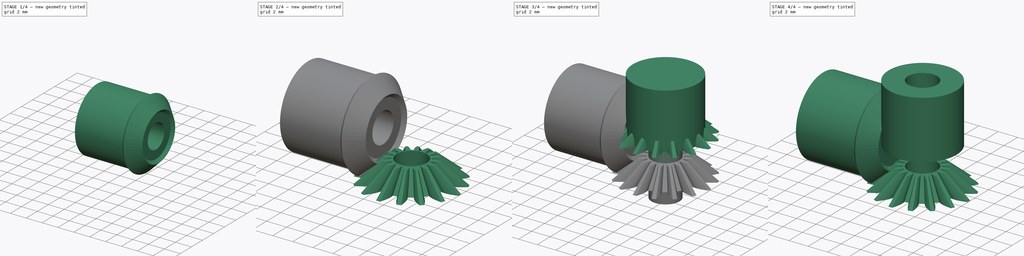
[diagram: build sequence overview — one tinted view per stage of 4, left to right]
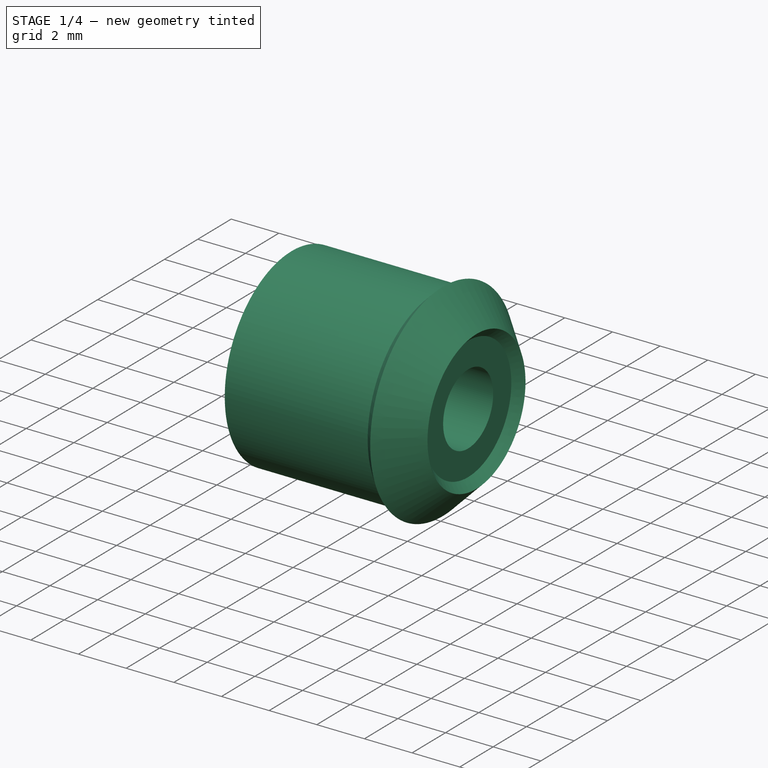
[diagram: stage 1 of 4 — iso view after this stage's code; geometry added in this stage tinted green]
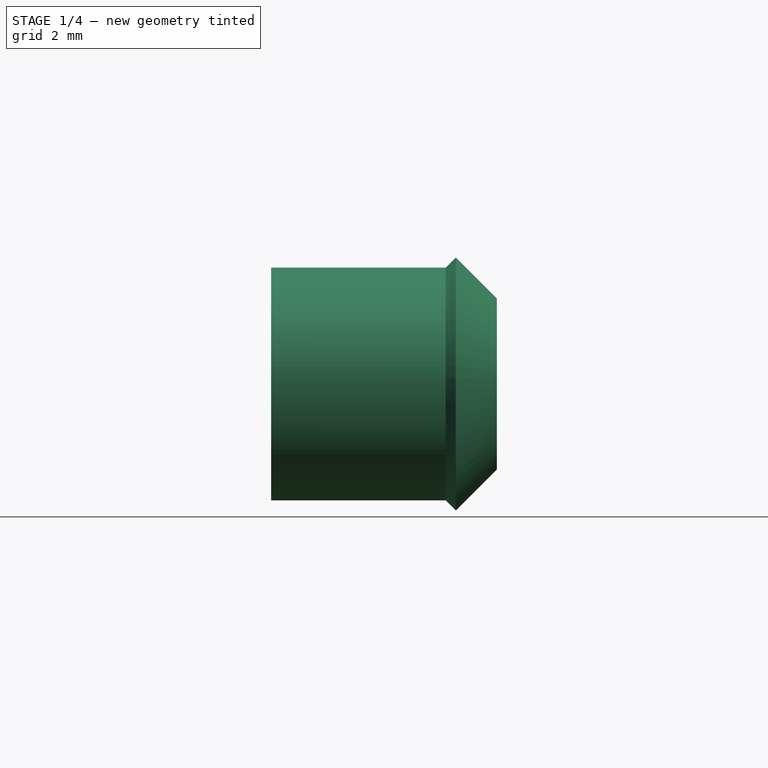
[diagram: stage 1 of 4 — front view after this stage's code; geometry added in this stage tinted green]
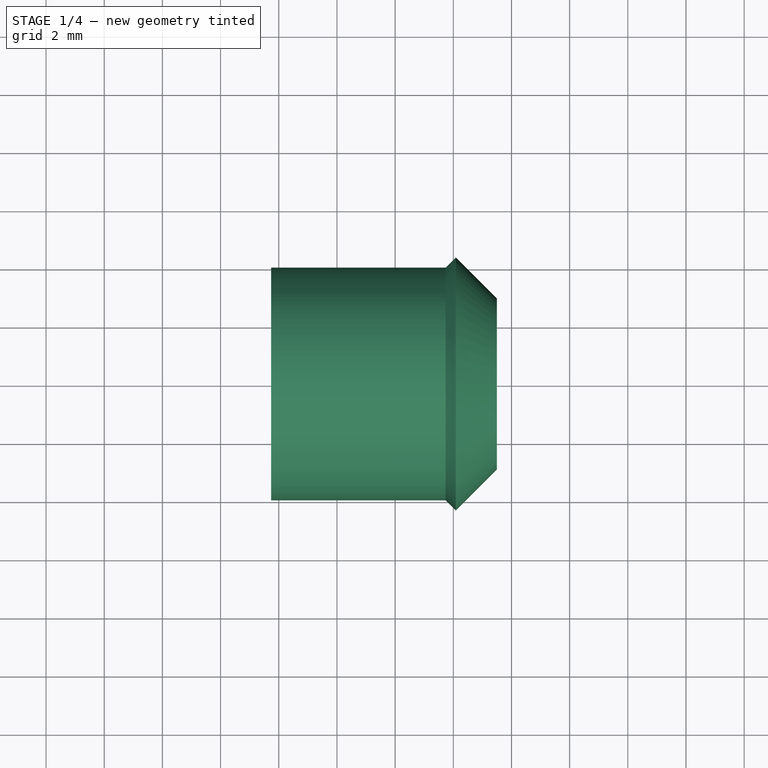
[diagram: stage 1 of 4 — top view after this stage's code; geometry added in this stage tinted green]
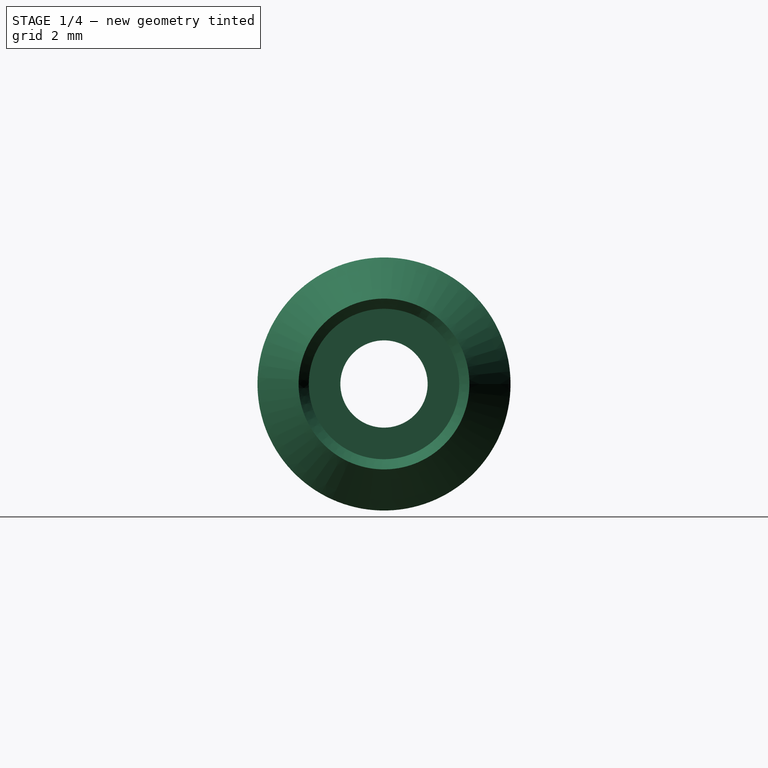
[diagram: stage 1 of 4 — right view after this stage's code; geometry added in this stage tinted green]
FCSTD DOCUMENT  (FreeCAD 0.19R)
Label: gears2
License: All rights reserved
LicenseURL: http://en.wikipedia.org/wiki/All_rights_reserved
objects: Sketcher::SketchObject×8, PartDesign::Body×6, PartDesign::Pad×4, Part::FeaturePython×2, PartDesign::ShapeBinder×2, Part::Cut×2, App::Part×2, PartDesign::Revolution×2
note: 32 computed .brp shape members not serialized (recipe doc carries the construction recipe); baked Part::Feature solids carry a one-line shape summary decoded from their .brp

FEATURE [App::Part] Part001  label="bevel_gear_x"
  Group = -> [Body003,BevelGear001,Body002,Cut001]
  Origin = -> Origin005
  Placement = pos=(0,0,0) rot=(0,1,0;1.5708rad)
FEATURE [Sketcher::SketchObject] Sketch006
  FullyConstrained = true
  MapMode = 5
  Support = -> [XY_Plane006]
  sketch-geometry (7):
    g0: LineSegment StartX=-10.2642 StartY=4 StartZ=0 EndX=-4.26421 EndY=4 EndZ=0
    g1: LineSegment StartX=-4.26421 StartY=4 StartZ=0 EndX=-3.91421 EndY=4.35 EndZ=0
    g2: LineSegment StartX=-3.91421 StartY=4.35 StartZ=0 EndX=-2.5 EndY=2.93579 EndZ=0
    g3: LineSegment StartX=-2.5 StartY=2.93579 StartZ=0 EndX=-2.85 EndY=2.58579 EndZ=0
    g4: LineSegment StartX=-2.85 StartY=2.58579 StartZ=0 EndX=-2.85 EndY=1.5 EndZ=0
    g5: LineSegment StartX=-2.85 StartY=1.5 StartZ=0 EndX=-10.2642 EndY=1.5 EndZ=0
    g6: LineSegment StartX=-10.2642 StartY=1.5 StartZ=0 EndX=-10.2642 EndY=4 EndZ=0
  constraints (21):
    c: Horizontal(g0)
    c: Coincident(g0,g1)
    c: Coincident(g1,g2)
    c: Coincident(g2,g3)
    c: Coincident(g3,g4)
    c: Vertical(g4)
    c: Coincident(g4,g5)
    c: Horizontal(g5)
    c: Coincident(g5,g6)
    c: Coincident(g6,g0)
    c: Vertical(g6)
    c: DistanceX(g0,g0) = 6  'Lm'
    c: Parallel(g3,g1)
    c: Distance(g2) = 2  'F'
    c: Angle(g1,g0) = 2.35619
    c: DistanceY(g-1,g4) = 1.5  'bore'
    c: DistanceY(g-1,g0) = 4  'rm'
    c: DistanceY(g-1,g1) = 4.35
    c: Perpendicular(g1,g2)
    c: DistanceX(g2,g-1) = 2.5
    c: Equal(g3,g1)
FEATURE [PartDesign::Revolution] Revolution
  Angle = 360
  Axis = (1,0,0)
  Base = (0,0,0)
  Profile = -> Sketch006
  ReferenceAxis = -> X_Axis006
FEATURE [PartDesign::Body] Body004  label="bevel_x"
  Group = -> [Sketch006,Revolution]
  Origin = -> Origin006
  Tip = -> Revolution
FEATURE [Sketcher::SketchObject] Sketch007
  FullyConstrained = true
  MapMode = 5
  Support = -> [XY_Plane007]
  sketch-geometry (7):
    g0: LineSegment StartX=-10.2642 StartY=4 StartZ=0 EndX=-4.26421 EndY=4 EndZ=0
    g1: LineSegment StartX=-4.26421 StartY=4 StartZ=0 EndX=-3.91421 EndY=4.35 EndZ=0
    g2: LineSegment StartX=-3.91421 StartY=4.35 StartZ=0 EndX=-2.5 EndY=2.93579 EndZ=0
    g3: LineSegment StartX=-2.5 StartY=2.93579 StartZ=0 EndX=-2.85 EndY=2.58579 EndZ=0
    g4: LineSegment StartX=-2.85 StartY=2.58579 StartZ=0 EndX=-2.85 EndY=1.5 EndZ=0
    g5: LineSegment StartX=-2.85 StartY=1.5 StartZ=0 EndX=-10.2642 EndY=1.5 EndZ=0
    g6: LineSegment StartX=-10.2642 StartY=1.5 StartZ=0 EndX=-10.2642 EndY=4 EndZ=0
  constraints (21):
    c: Horizontal(g0)
    c: Coincident(g0,g1)
    c: Coincident(g1,g2)
    c: Coincident(g2,g3)
    c: Coincident(g3,g4)
    c: Vertical(g4)
    c: Coincident(g4,g5)
    c: Horizontal(g5)
    c: Coincident(g5,g6)
    c: Coincident(g6,g0)
    c: Vertical(g6)
    c: DistanceX(g0,g0) = 6  'Lm'
    c: Parallel(g3,g1)
    c: Distance(g2) = 2  'F'
    c: Angle(g1,g0) = 2.35619
    c: DistanceY(g-1,g4) = 1.5  'bore'
    c: DistanceY(g-1,g0) = 4  'rm'
    c: DistanceY(g-1,g1) = 4.35
    c: Perpendicular(g1,g2)
    c: DistanceX(g2,g-1) = 2.5
    c: Equal(g3,g1)
FEATURE [PartDesign::Revolution] Revolution001
  Angle = 360
  Axis = (1,0,0)
  Base = (0,0,0)
  Profile = -> Sketch007
  ReferenceAxis = -> X_Axis007
FEATURE [PartDesign::Body] Body005  label="bevel_z"
  Group = -> [Sketch007,Revolution001]
  Origin = -> Origin007
  Placement = pos=(0,0,0) rot=(0,0,1;1.5708rad)
  Tip = -> Revolution001
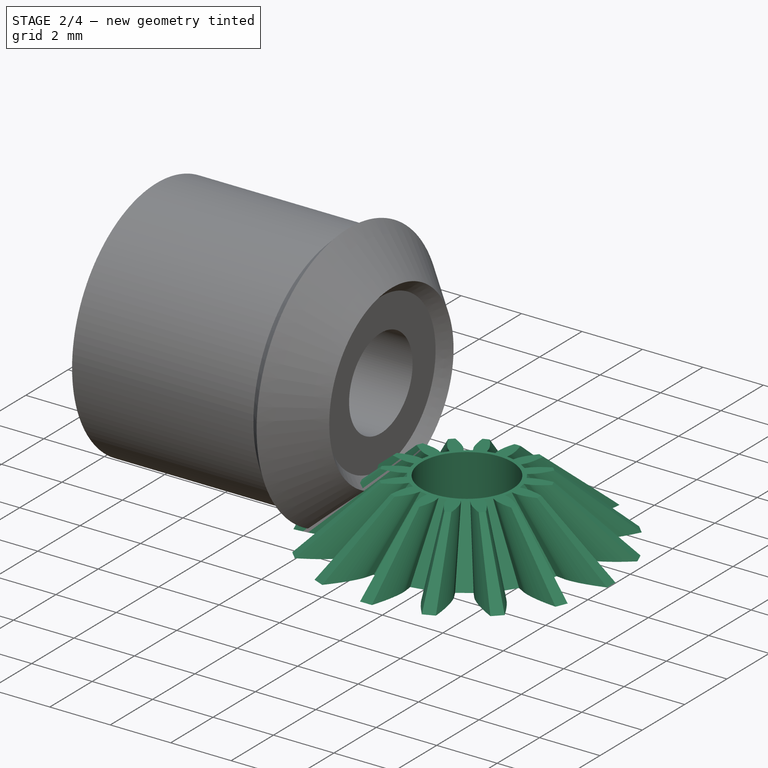
[diagram: stage 2 of 4 — iso view after this stage's code; geometry added in this stage tinted green]
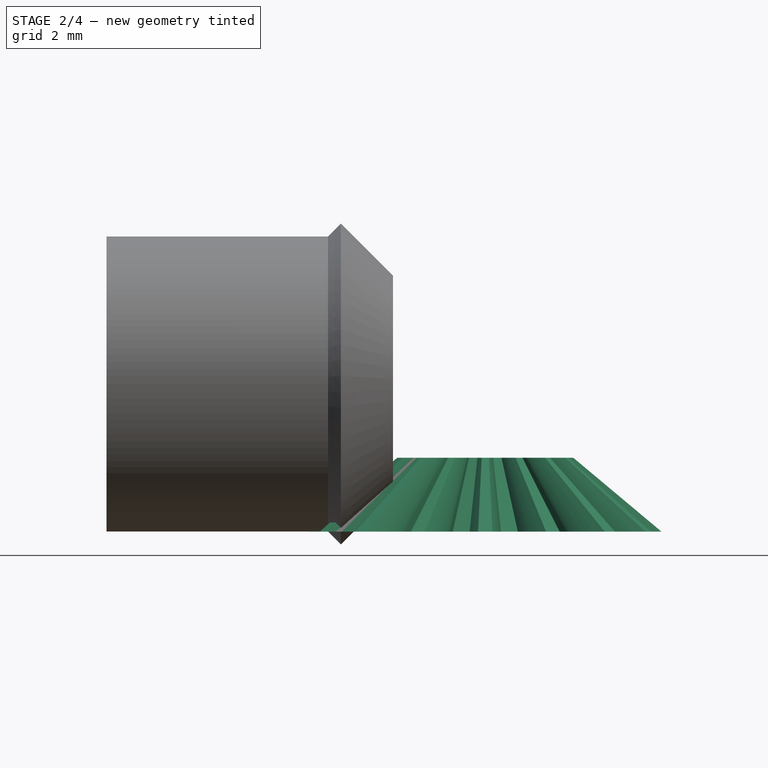
[diagram: stage 2 of 4 — front view after this stage's code; geometry added in this stage tinted green]
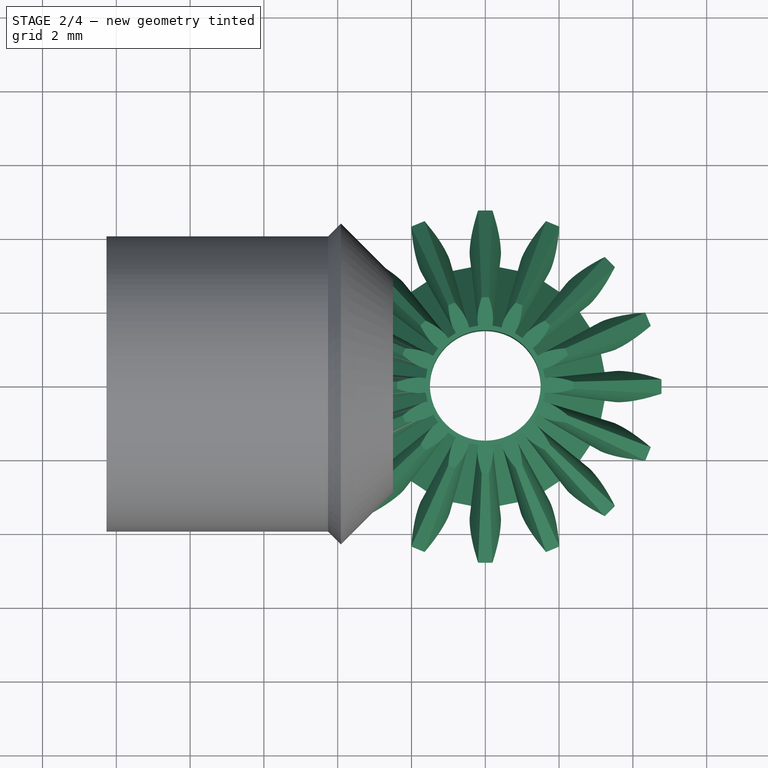
[diagram: stage 2 of 4 — top view after this stage's code; geometry added in this stage tinted green]
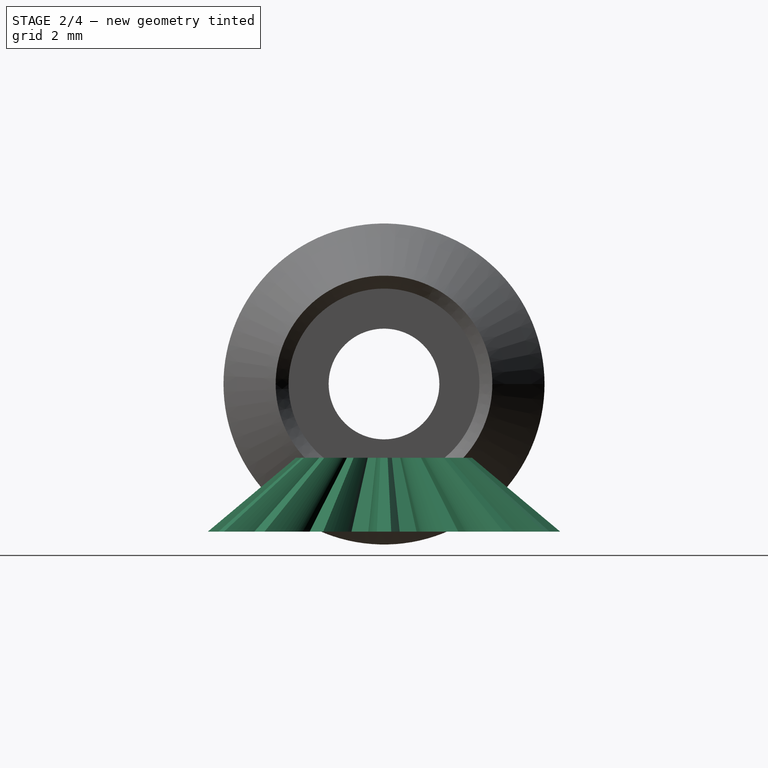
[diagram: stage 2 of 4 — right view after this stage's code; geometry added in this stage tinted green]
FEATURE [App::Part] Part  label="bevel_gear_z"
  Group = -> [Body,BevelGear,Body001,Cut]
  Origin = -> Origin002
  Placement = pos=(0,0,0) rot=(0,0,1;0.20944rad)
FEATURE [Sketcher::SketchObject] Sketch003
  FullyConstrained = true
  MapMode = 5
  Support = -> [XY_Plane005]
  sketch-geometry (1):
    g0: Circle CenterX=0 CenterY=0 CenterZ=0 NormalX=0 NormalY=0 NormalZ=1 AngleXU=0 Radius=1.5
  constraints (2):
    c: Coincident(g0,g-1)
    c: Diameter(g0) = 3
FEATURE [Part::FeaturePython] BevelGear001  # WARN: FeaturePython — macro-defined, semantics opaque (R4)
  AttacherType = Attacher::AttachEngine3D
  angular_backlash = 0
  backlash = 0
  beta = 0
  clearance = 0.1
  dw = 8
  height = 2
  module = 0.5
  numpoints = 6
  pitch_angle = 45
  pressure_angle = 20
  reset_origin = true
  teeth = 16
  version = 0.0.4
  expr: angular_backlash = backlash / dw * 360° / pi
  expr: dw = teeth * module
FEATURE [PartDesign::Body] Body003
  Group = -> [Sketch004,Pad002]
  Origin = -> Origin003
  Placement = pos=(0,0,-10) rot=(0,0,1;0rad)
  Tip = -> Pad002
FEATURE [PartDesign::Pad] Pad003
  Direction = (1,1,1)
  Length = 12
  Length2 = 100
  Midplane = true
  Profile = -> Sketch003
  Type = 0
FEATURE [PartDesign::ShapeBinder] CopyPad001
  TraceSupport = false
FEATURE [Sketcher::SketchObject] Sketch005
  FullyConstrained = true
  MapMode = 5
  Placement = pos=(0,0,0) rot=(1,0,0;3.14159rad)
  Support = -> [CopyPad001]
  sketch-geometry (1):
    g0: Circle CenterX=0 CenterY=0 CenterZ=0 NormalX=0 NormalY=0 NormalZ=1 AngleXU=0 Radius=1.5
  constraints (2):
    c: Coincident(g0,g-1)
    c: Diameter(g0) = 3
FEATURE [PartDesign::Body] Body002
  Group = -> [Sketch003,Pad003,CopyPad001,Sketch005]
  Origin = -> Origin004
  Tip = -> Pad003
FEATURE [Part::Cut] Cut001
  Base = -> BevelGear001
  Placement = pos=(0,0,-4) rot=(0,0,1;0rad)
  Tool = -> Body002
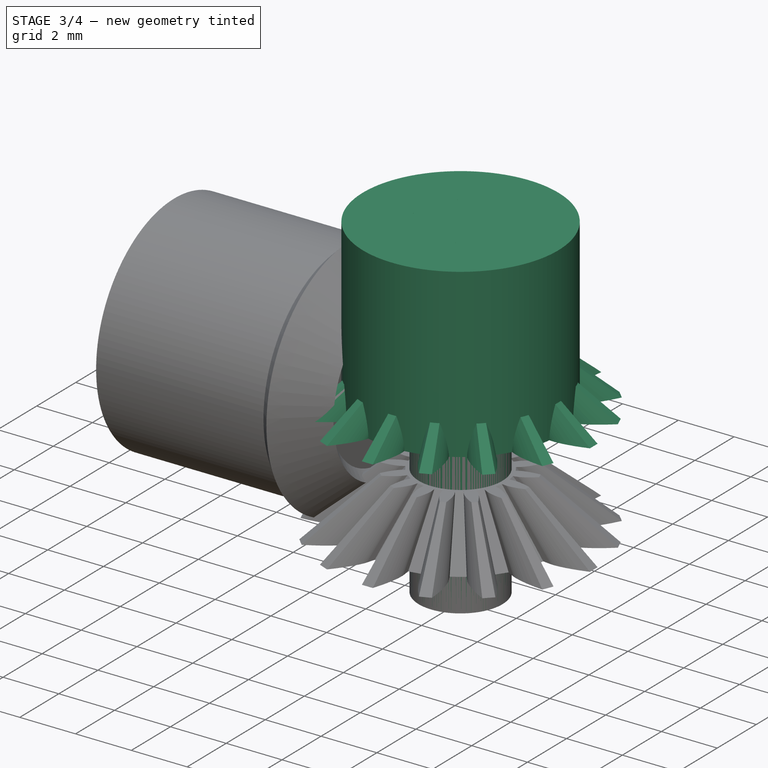
[diagram: stage 3 of 4 — iso view after this stage's code; geometry added in this stage tinted green]
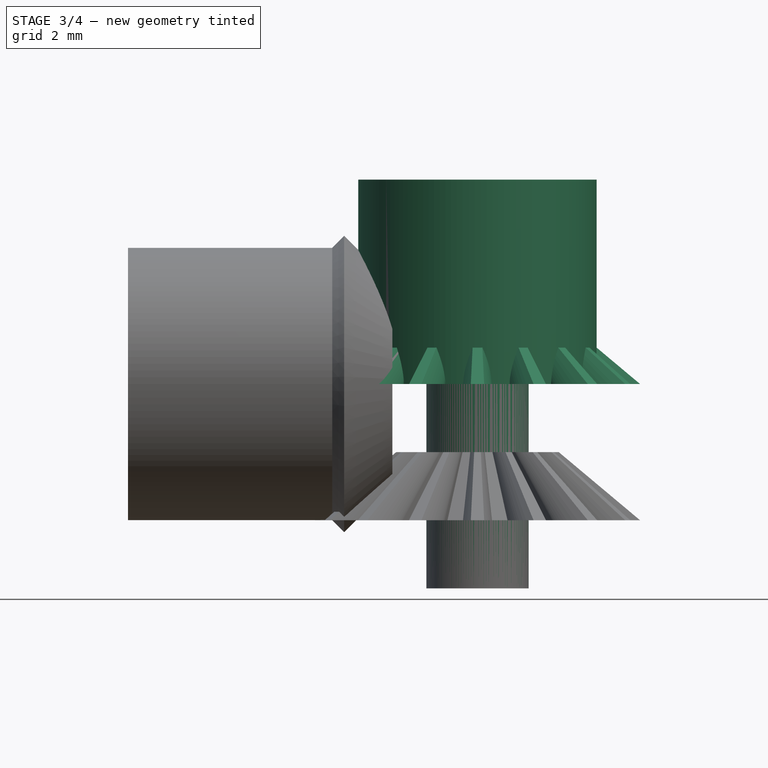
[diagram: stage 3 of 4 — front view after this stage's code; geometry added in this stage tinted green]
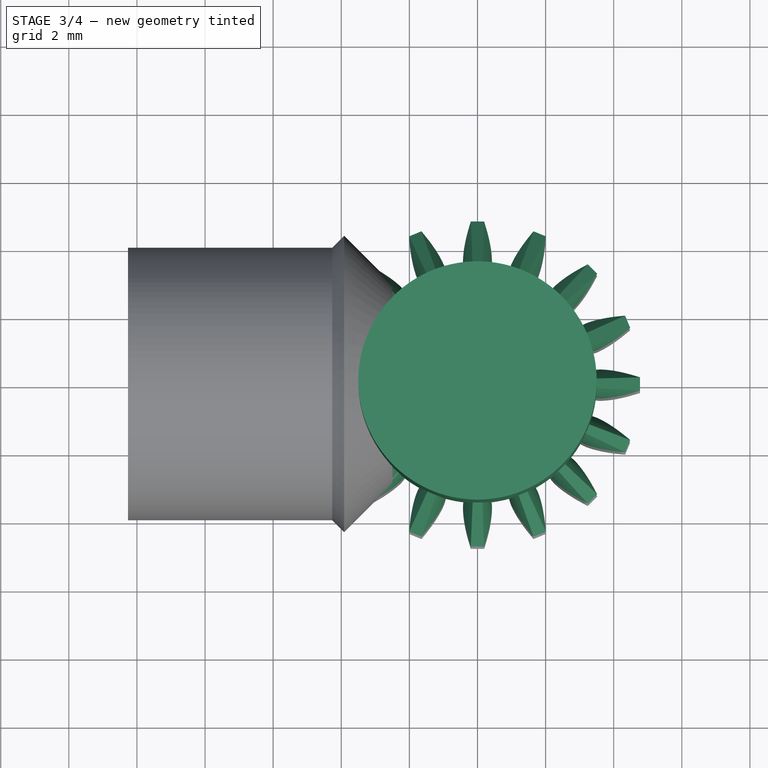
[diagram: stage 3 of 4 — top view after this stage's code; geometry added in this stage tinted green]
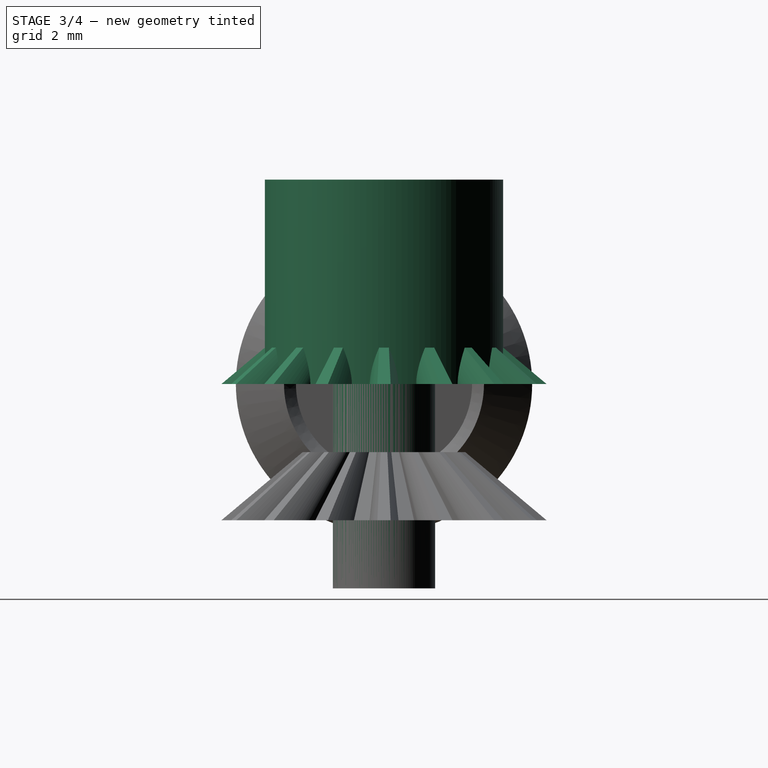
[diagram: stage 3 of 4 — right view after this stage's code; geometry added in this stage tinted green]
FEATURE [Part::FeaturePython] BevelGear  # WARN: FeaturePython — macro-defined, semantics opaque (R4)
  AttacherType = Attacher::AttachEngine3D
  angular_backlash = 0
  backlash = 0
  beta = 0
  clearance = 0.1
  dw = 8
  height = 2
  module = 0.5
  numpoints = 6
  pitch_angle = 45
  pressure_angle = 20
  reset_origin = true
  teeth = 16
  version = 0.0.4
  expr: dw = teeth * module
  expr: angular_backlash = backlash / dw * 360° / pi
FEATURE [PartDesign::Body] Body
  Group = -> [Sketch,Pad]
  Origin = -> Origin
  Placement = pos=(0,0,-10) rot=(0,0,1;0rad)
  Tip = -> Pad
FEATURE [Sketcher::SketchObject] Sketch001
  FullyConstrained = true
  MapMode = 5
  Support = -> [XY_Plane001]
  sketch-geometry (1):
    g0: Circle CenterX=0 CenterY=0 CenterZ=0 NormalX=0 NormalY=0 NormalZ=1 AngleXU=0 Radius=1.5
  constraints (2):
    c: Coincident(g0,g-1)
    c: Diameter(g0) = 3
FEATURE [PartDesign::Pad] Pad001
  Direction = (1,1,1)
  Length = 12
  Length2 = 100
  Midplane = true
  Profile = -> Sketch001
  Type = 0
FEATURE [Sketcher::SketchObject] Sketch004
  FullyConstrained = true
  MapMode = 5
  Support = -> [XY_Plane003]
  sketch-geometry (2):
    g0: Circle CenterX=0 CenterY=0 CenterZ=0 NormalX=0 NormalY=0 NormalZ=1 AngleXU=0 Radius=3.5
    g1: Circle CenterX=0 CenterY=0 CenterZ=0 NormalX=0 NormalY=0 NormalZ=1 AngleXU=0 Radius=1.5
  constraints (4):
    c: Coincident(g0,g-1)
    c: Diameter(g0) = 7
    c: Coincident(g1,g0)
    c: Diameter(g1) = 3
FEATURE [PartDesign::Pad] Pad002
  Direction = (1,1,1)
  Length = 6
  Length2 = 100
  Profile = -> Sketch004
  Type = 0
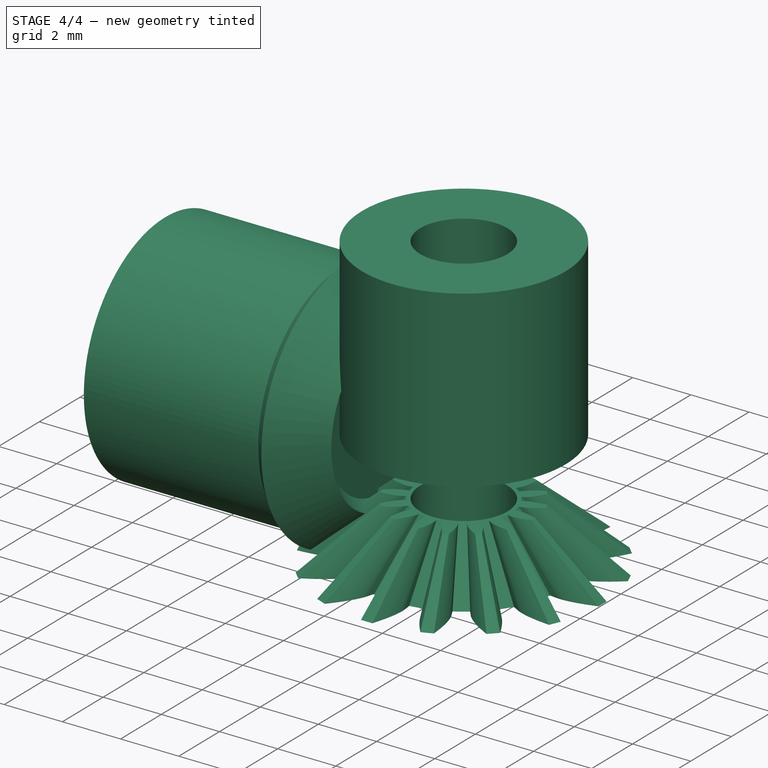
[diagram: stage 4 of 4 — iso view after this stage's code; geometry added in this stage tinted green]
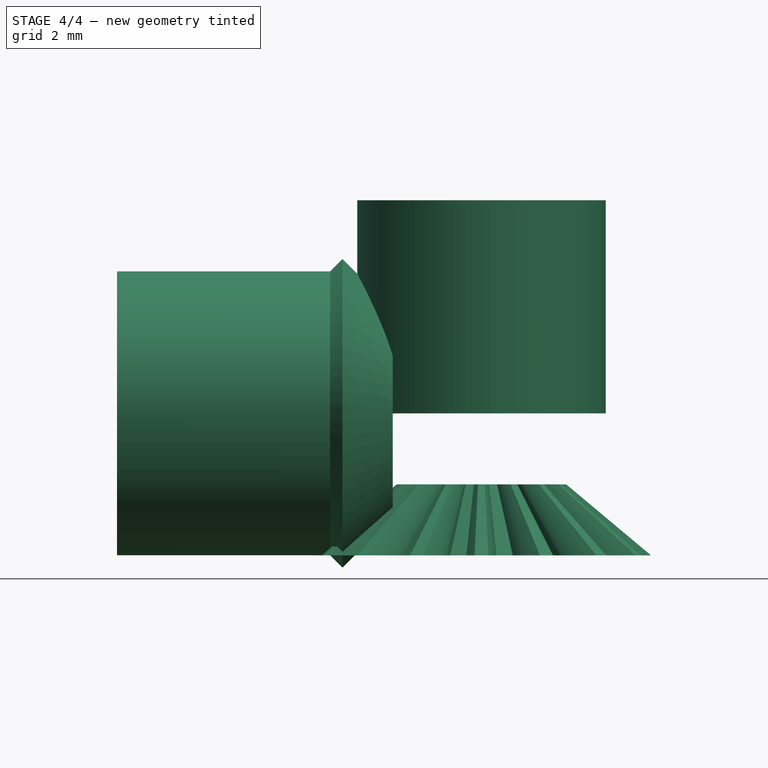
[diagram: stage 4 of 4 — front view after this stage's code; geometry added in this stage tinted green]
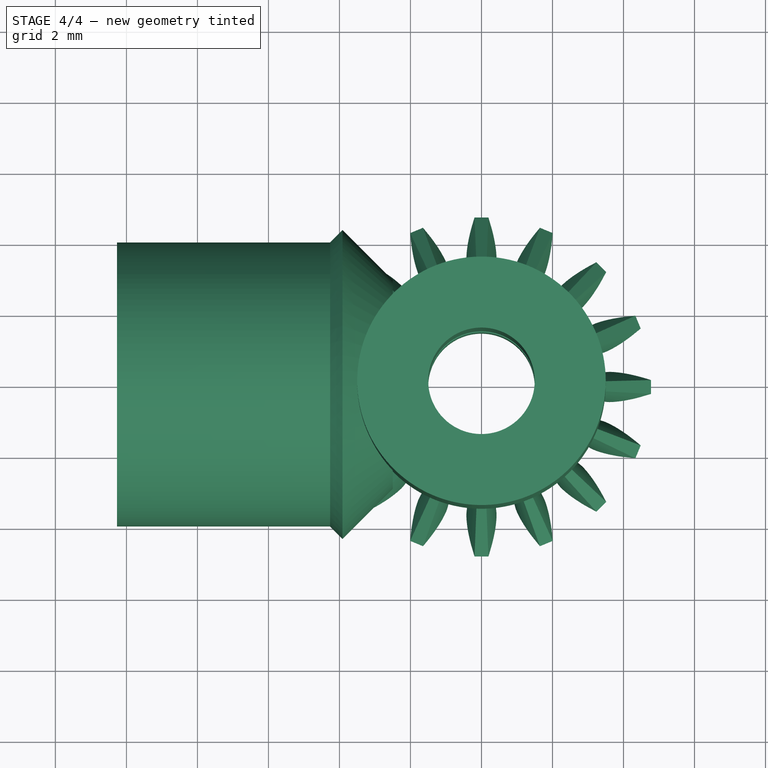
[diagram: stage 4 of 4 — top view after this stage's code; geometry added in this stage tinted green]
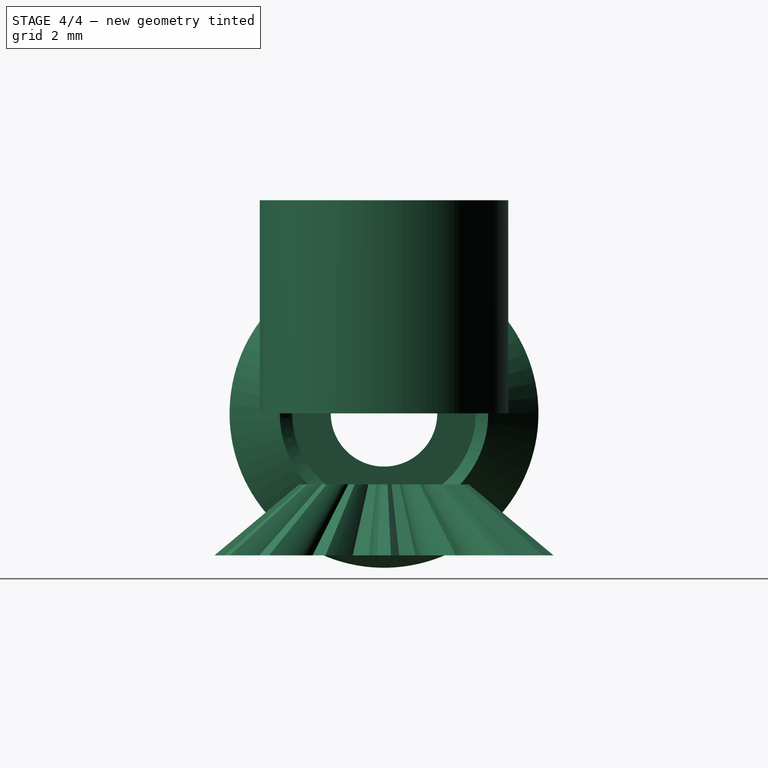
[diagram: stage 4 of 4 — right view after this stage's code; geometry added in this stage tinted green]
FEATURE [Sketcher::SketchObject] Sketch
  FullyConstrained = true
  MapMode = 5
  Support = -> [XY_Plane]
  sketch-geometry (2):
    g0: Circle CenterX=0 CenterY=0 CenterZ=0 NormalX=0 NormalY=0 NormalZ=1 AngleXU=0 Radius=3.5
    g1: Circle CenterX=0 CenterY=0 CenterZ=0 NormalX=0 NormalY=0 NormalZ=1 AngleXU=0 Radius=1.5
  constraints (4):
    c: Coincident(g0,g-1)
    c: Diameter(g0) = 7
    c: Coincident(g1,g0)
    c: Diameter(g1) = 3
FEATURE [PartDesign::Pad] Pad
  Direction = (1,1,1)
  Length = 6
  Length2 = 100
  Profile = -> Sketch
  Type = 0
FEATURE [PartDesign::ShapeBinder] CopyPad
  TraceSupport = false
FEATURE [Sketcher::SketchObject] Sketch002
  FullyConstrained = true
  MapMode = 5
  Placement = pos=(0,0,0) rot=(1,0,0;3.14159rad)
  Support = -> [CopyPad]
  sketch-geometry (1):
    g0: Circle CenterX=0 CenterY=0 CenterZ=0 NormalX=0 NormalY=0 NormalZ=1 AngleXU=0 Radius=1.5
  constraints (2):
    c: Coincident(g0,g-1)
    c: Diameter(g0) = 3
FEATURE [PartDesign::Body] Body001
  Group = -> [Sketch001,Pad001,CopyPad,Sketch002]
  Origin = -> Origin001
  Tip = -> Pad001
FEATURE [Part::Cut] Cut
  Base = -> BevelGear
  Placement = pos=(0,0,-4) rot=(0,0,1;0rad)
  Tool = -> Body001
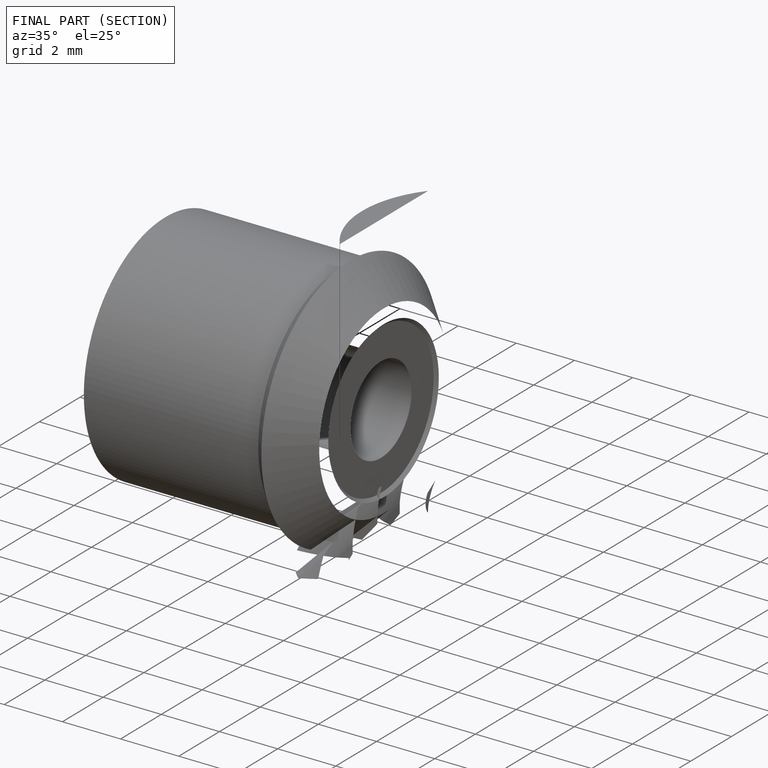
[diagram: finished part — half-section view (interior)]
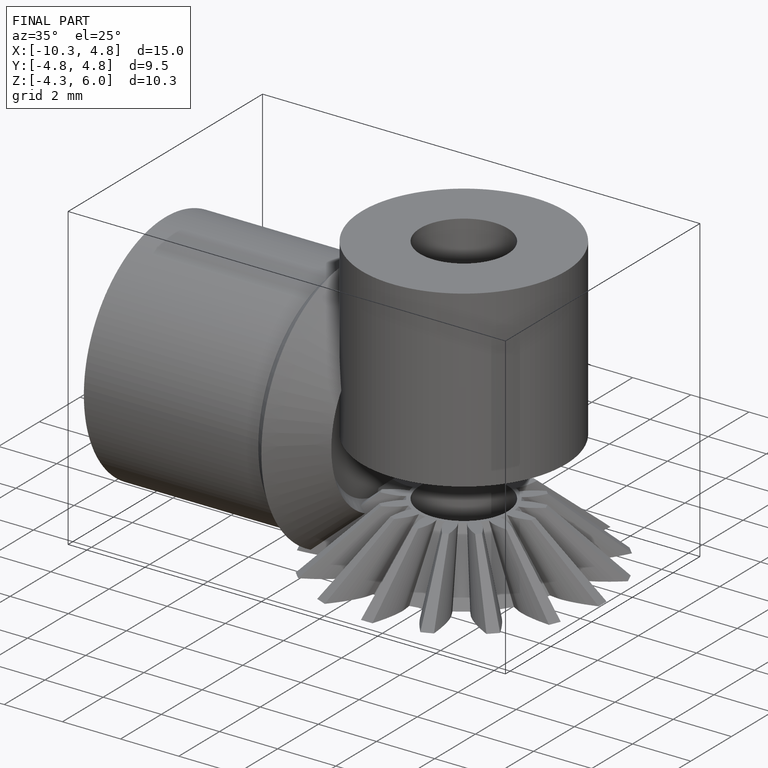
[diagram: finished part — iso view with bounding-box wireframe]
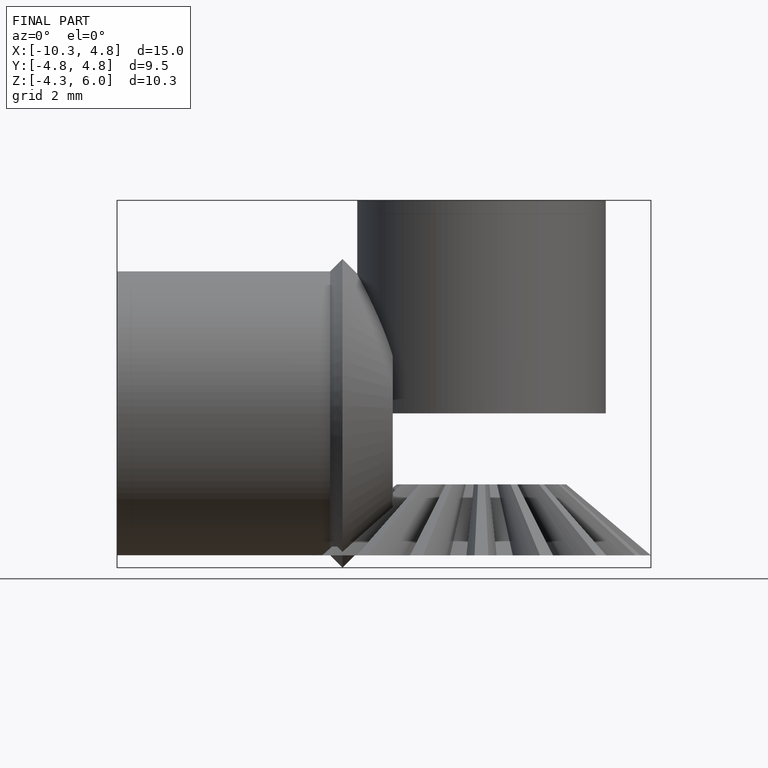
[diagram: finished part — front view with bounding-box wireframe]
